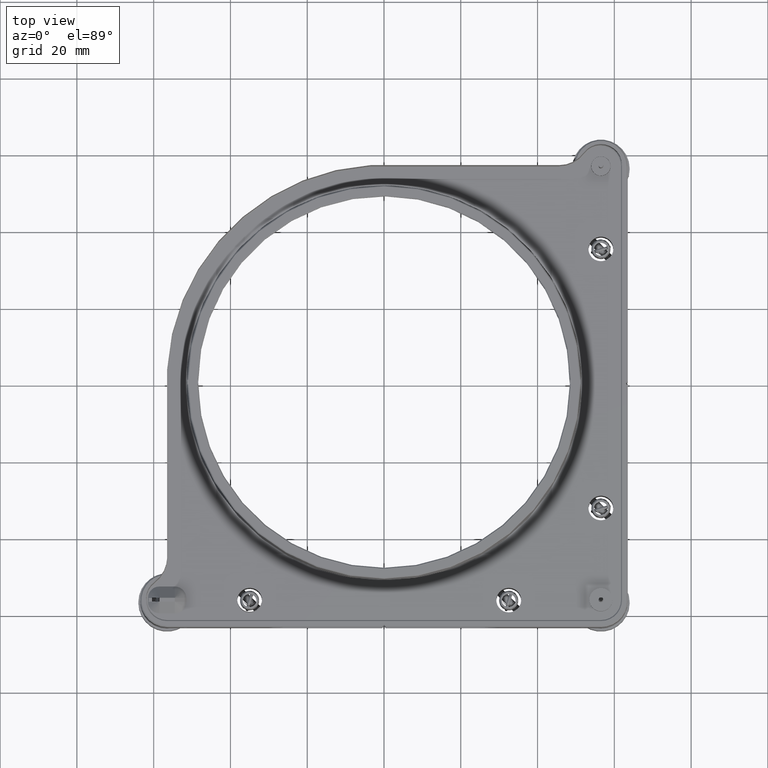
[diagram: clean part render]
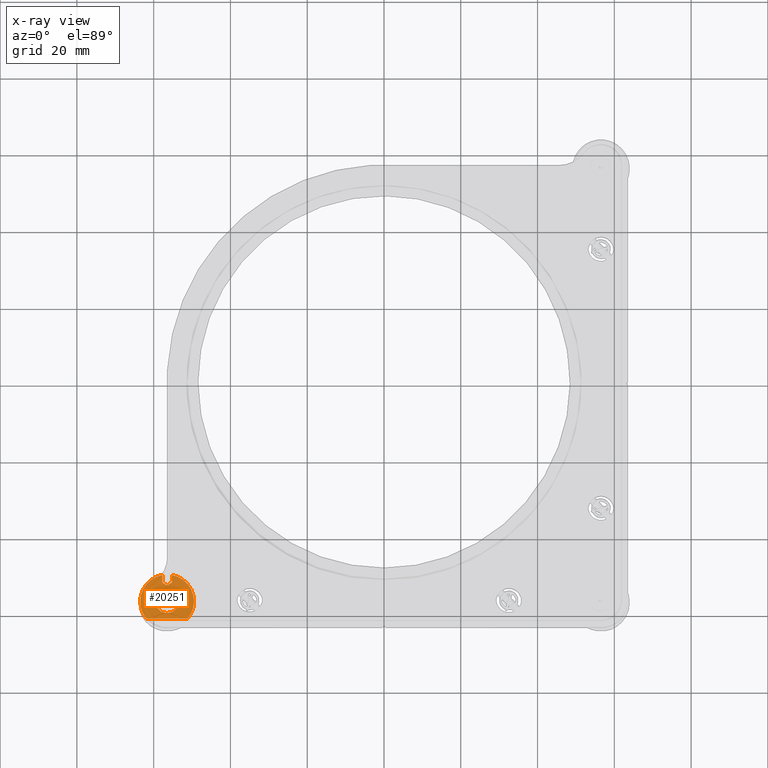
[diagram: x-ray — body ghosted, one internal face saturated and labeled with its STEP entity id]
A machine part, top view, then the same camera in x-ray: the body is ghosted and one INTERNAL B-rep face — a face not visible from any outside direction — is saturated and labeled: STEP entity #20251.
In plain terms, the highlighted planar face has unit normal (0, -0, -1).
Its self-contained STEP definition (entity closure, byte-faithful):
#3 = CARTESIAN_POINT ( 'NONE',  ( -56.16186078174233387, -52.09840403691675448, -11.75000000000037481 ) ) ;
#43 = VERTEX_POINT ( 'NONE', #5262 ) ;
#78 = CARTESIAN_POINT ( 'NONE',  ( -56.49999999999992184, -53.49999999999980105, -11.50000000000045652 ) ) ;
#114 = CARTESIAN_POINT ( 'NONE',  ( -55.80894967487798652, -51.90952867547864003, -11.75000000000037659 ) ) ;
#271 = CARTESIAN_POINT ( 'NONE',  ( -50.51871265478024497, -52.86193592251775186, -11.25000000000052225 ) ) ;
#381 = CARTESIAN_POINT ( 'NONE',  ( -50.99856001058206090, -52.16649219535297988, -11.25000000000052935 ) ) ;
#477 = CARTESIAN_POINT ( 'NONE',  ( -58.50842081413923523, -49.74723849351862981, -11.25000000000055422 ) ) ;
#792 = DIRECTION ( 'NONE',  ( 1.963787471554208203E-15, -6.569889802812270970E-15, -1.000000000000000000 ) ) ;
#802 = CARTESIAN_POINT ( 'NONE',  ( -61.12845390056069306, -51.24750316246133508, -11.25000000000055245 ) ) ;
#915 = CARTESIAN_POINT ( 'NONE',  ( -63.16029154338028917, -54.34469888105432034, -11.25000000000053824 ) ) ;
#929 = CARTESIAN_POINT ( 'NONE',  ( -55.44014819953409301, -53.69334827706997970, -11.75000000000038902 ) ) ;
#1007 = CARTESIAN_POINT ( 'NONE',  ( -57.51526661639231008, -59.32311495970036219, -11.75000000000041567 ) ) ;
#1013 = CARTESIAN_POINT ( 'NONE',  ( -59.29888203132725977, -55.41976774133113537, -11.75000000000039080 ) ) ;
#1094 = VERTEX_POINT ( 'NONE', #5061 ) ;
#1214 = CARTESIAN_POINT ( 'NONE',  ( -53.49999999999991473, -56.69065434817396465, -11.75000000000040856 ) ) ;
#1288 = CARTESIAN_POINT ( 'NONE',  ( -61.86190264738173994, -60.99999999999952394, -11.75000000000042100 ) ) ;
#1372 = CARTESIAN_POINT ( 'NONE',  ( -58.23817256719159019, -54.03906391374328422, -11.75000000000038547 ) ) ;
#1451 = CARTESIAN_POINT ( 'NONE',  ( -53.52632938710149091, -56.97168062539027744, -11.75000000000040856 ) ) ;
#1486 = CARTESIAN_POINT ( 'NONE',  ( -56.16929105988992887, -52.10197467492879042, -11.75000000000037836 ) ) ;
#1488 = CARTESIAN_POINT ( 'NONE',  ( -57.93138267622927629, -53.85953354456488995, -11.75000000000038369 ) ) ;
#1566 = CARTESIAN_POINT ( 'NONE',  ( -53.67690056958872447, -57.51530586231214670, -11.75000000000041211 ) ) ;
#1601 = CARTESIAN_POINT ( 'NONE',  ( -55.84200856994303308, -51.92814195544448808, -11.75000000000037659 ) ) ;
#1899 = EDGE_CURVE ( 'NONE', #1956, #43, #16013, .T. ) ;
#1936 = ORIENTED_EDGE ( 'NONE', *, *, #13702, .F. ) ;
#1941 = CARTESIAN_POINT ( 'NONE',  ( -56.29729708330521731, -52.15780052147799495, -11.75000000000037303 ) ) ;
#1956 = VERTEX_POINT ( 'NONE', #18577 ) ;
#2054 = CARTESIAN_POINT ( 'NONE',  ( -57.10704332855591048, -51.95660970702233072, -11.75000000000036948 ) ) ;
#2060 = EDGE_LOOP ( 'NONE', ( #8557, #2856, #3161, #4019 ) ) ;
#2127 = EDGE_CURVE ( 'NONE', #14366, #5781, #11643, .T. ) ;
#2190 = CARTESIAN_POINT ( 'NONE',  ( -49.49999999999989342, -56.49999999999968026, -11.25000000000043876 ) ) ;
#2198 = CARTESIAN_POINT ( 'NONE',  ( -62.68895012851452719, -53.22771773545589014, -11.25000000000054179 ) ) ;
#2205 = CARTESIAN_POINT ( 'NONE',  ( -50.63132769190118410, -52.68287588785119624, -11.25000000000052580 ) ) ;
#2388 = B_SPLINE_CURVE_WITH_KNOTS ( 'NONE', 3,
 ( #6049, #8080, #8199, #18454, #6265, #16858, #929, #9559, #4467, #7850, #11500, #20404, #16629, #4820, #18222, #15032, #20167, #16519, #11385, #3108 ),
 .UNSPECIFIED., .F., .F.,
 ( 4, 1, 1, 1, 2, 2, 2, 1, 1, 1, 2, 2, 4 ),
 ( 0.4999999999999998890, 0.5625000000000014433, 0.5937500000000031086, 0.6093750000000039968, 0.6171875000000033307, 0.6250000000000026645, 0.7499999999999952260, 0.8124999999999922284, 0.8437499999999906741, 0.8593749999999904521, 0.8671874999999902300, 0.8749999999999901190, 1.000000000000000000 ),
 .UNSPECIFIED. ) ;
#2412 = CARTESIAN_POINT ( 'NONE',  ( -59.24671543388236472, -50.01236839837584114, -11.25000000000056311 ) ) ;
#2418 = CARTESIAN_POINT ( 'NONE',  ( -50.30906779553731667, -53.22646420396986855, -11.25000000000052225 ) ) ;
#2525 = CARTESIAN_POINT ( 'NONE',  ( -61.51481666413052096, -51.60807952107313668, -11.25000000000055067 ) ) ;
#2538 = VERTEX_POINT ( 'NONE', #21933 ) ;
#2856 = ORIENTED_EDGE ( 'NONE', *, *, #19281, .F. ) ;
#3073 = CARTESIAN_POINT ( 'NONE',  ( -59.14046645542755698, -57.93138267623469062, -11.75000000000040856 ) ) ;
#3108 = CARTESIAN_POINT ( 'NONE',  ( -53.49999999999991473, -56.49999999999980105, -11.75000000000040856 ) ) ;
#3148 = ORIENTED_EDGE ( 'NONE', *, *, #4364, .F. ) ;
#3157 = B_SPLINE_CURVE_WITH_KNOTS ( 'NONE', 3,
 ( #20132, #18649, #3304, #22209, #13188, #1007, #6343, #6574, #11824, #16707, #11582, #9744, #3073, #16940, #7927, #18533, #13417, #8041, #14995, #21849 ),
 .UNSPECIFIED., .F., .F.,
 ( 4, 1, 1, 1, 2, 2, 2, 1, 1, 1, 2, 2, 4 ),
 ( 0.5000000000000001110, 0.5624999999999890088, 0.5937499999999847899, 0.6093749999999826805, 0.6171874999999816813, 0.6249999999999806821, 0.7499999999999755751, 0.8124999999999737987, 0.8437499999999734657, 0.8593749999999737987, 0.8671874999999749090, 0.8749999999999760192, 1.000000000000000000 ),
 .UNSPECIFIED. ) ;
#3161 = ORIENTED_EDGE ( 'NONE', *, *, #20387, .F. ) ;
#3275 = CARTESIAN_POINT ( 'NONE',  ( -53.60312343281445635, -57.29087293664740344, -11.75000000000041211 ) ) ;
#3304 = CARTESIAN_POINT ( 'NONE',  ( -56.97153162393164649, -59.47372957155613449, -11.75000000000042100 ) ) ;
#3310 = CARTESIAN_POINT ( 'NONE',  ( -56.57274855381451317, -52.19583506706712939, -11.75000000000038369 ) ) ;
#3312 = CARTESIAN_POINT ( 'NONE',  ( -59.13709085294672008, -55.01088595104289425, -11.75000000000039080 ) ) ;
#3357 = CARTESIAN_POINT ( 'NONE',  ( -52.61421730471138147, -50.67098742930284061, -11.25000000000054179 ) ) ;
#3420 = CARTESIAN_POINT ( 'NONE',  ( -56.20960413102373110, -52.12111964587311519, -11.75000000000038192 ) ) ;
#3869 = CARTESIAN_POINT ( 'NONE',  ( -56.66825393247313514, -52.17001119424177347, -11.75000000000037303 ) ) ;
#3903 = CARTESIAN_POINT ( 'NONE',  ( -60.09759000668439199, -50.49482234149553506, -11.25000000000055245 ) ) ;
#3910 = CARTESIAN_POINT ( 'NONE',  ( -49.63186560256951907, -54.93075197248577979, -11.25000000000050981 ) ) ;
#4019 = ORIENTED_EDGE ( 'NONE', *, *, #4299, .F. ) ;
#4022 = CARTESIAN_POINT ( 'NONE',  ( -50.02409909007859312, -53.83878147589873464, -11.25000000000051514 ) ) ;
#4045 = B_SPLINE_CURVE_WITH_KNOTS ( 'NONE', 3,
 ( #18770, #11933, #13533, #6799 ),
 .UNSPECIFIED., .F., .F.,
 ( 4, 4 ),
 ( 0.000000000000000000, 1.000000000000000000 ),
 .UNSPECIFIED. ) ;
#4050 = B_SPLINE_CURVE_WITH_KNOTS ( 'NONE', 3,
 ( #17067, #21976, #6351, #9873, #7936, #4789, #18426, #1013, #3312, #10109, #11711, #1372, #1488, #13307, #6582, #15364, #22338, #13543, #11944, #9752 ),
 .UNSPECIFIED., .F., .F.,
 ( 4, 1, 1, 1, 2, 2, 2, 1, 1, 1, 2, 2, 4 ),
 ( 0.000000000000000000, 0.06249999999999640565, 0.09374999999999461542, 0.1093749999999940187, 0.1171874999999948236, 0.1249999999999956146, 0.2499999999999916178, 0.3124999999999903411, 0.3437499999999902855, 0.3593749999999888423, 0.3671874999999895084, 0.3749999999999901745, 0.4999999999999998890 ),
 .UNSPECIFIED. ) ;
#4120 = CARTESIAN_POINT ( 'NONE',  ( -63.03532545980032609, -53.98341618098292116, -11.25000000000054001 ) ) ;
#4127 = CARTESIAN_POINT ( 'NONE',  ( -49.49999999999989342, -56.49999999999968026, -11.25000000000043876 ) ) ;
#4299 = EDGE_CURVE ( 'NONE', #7898, #2538, #3157, .T. ) ;
#4364 = EDGE_CURVE ( 'NONE', #5345, #5781, #11254, .T. ) ;
#4467 = CARTESIAN_POINT ( 'NONE',  ( -55.01088595103418299, -53.86290914705651289, -11.75000000000038547 ) ) ;
#4663 = CARTESIAN_POINT ( 'NONE',  ( -57.72474487139208321, -49.60797562395462990, -11.50000000000029488 ) ) ;
#4789 = CARTESIAN_POINT ( 'NONE',  ( -59.32309943041114053, -55.48469413768628300, -11.75000000000039613 ) ) ;
#4820 = CARTESIAN_POINT ( 'NONE',  ( -53.78125533051308338, -55.22962801546916012, -11.75000000000039968 ) ) ;
#4909 = B_SPLINE_CURVE_WITH_KNOTS ( 'NONE', 3,
 ( #17176, #15702, #4912, #5240, #114, #1601, #7034, #13991, #20950, #15589, #5350, #12275, #19228, #10558, #3, #1486, #20612, #6700, #3420, #5125, #1941, #8855, #11830, #6916, #5022, #12052, #13876, #3310, #10220, #8509, #18996, #3869, #9073, #5889, #10889, #14105, #12727, #5680, #10785, #5465, #12615, #5788, #10675, #9288, #2054, #17955, #14321, #17631, #12390, #9179, #8964 ),
 .UNSPECIFIED., .F., .F.,
 ( 4, 1, 1, 1, 1, 1, 2, 2, 1, 1, 1, 1, 2, 2, 1, 1, 2, 2, 2, 1, 1, 1, 2, 2, 1, 1, 1, 2, 2, 1, 1, 1, 1, 2, 2, 4 ),
 ( 0.000000000000000000, 0.1250000000000580092, 0.1875000000000837386, 0.2187500000001004474, 0.2343750000001106892, 0.2421875000001202649, 0.2460937500001230405, 0.2500000000001257883, 0.3125000000001382783, 0.3437500000001478817, 0.3593750000001507128, 0.3671875000001584288, 0.3710937500001643685, 0.3750000000001703637, 0.4062500000002415290, 0.4218750000002771117, 0.4296875000002896017, 0.4375000000003021472, 0.5000000000004340972, 0.5312500000005001555, 0.5468750000005293543, 0.5546875000005405676, 0.5585937500005461187, 0.5625000000005516698, 0.5937500000005461187, 0.6093750000005417888, 0.6171875000005411227, 0.6210937500005376810, 0.6250000000005343503, 0.6875000000004581890, 0.7187500000004234391, 0.7343750000004047873, 0.7421875000003953504, 0.7460937500003907985, 0.7500000000003861356, 1.000000000000000000 ),
 .UNSPECIFIED. ) ;
#4912 = CARTESIAN_POINT ( 'NONE',  ( -55.57648270543909774, -51.77653576716659245, -11.75000000000037481 ) ) ;
#4991 = CARTESIAN_POINT ( 'NONE',  ( -54.08608737129758026, -58.32862300329139771, -11.75000000000041567 ) ) ;
#5022 = CARTESIAN_POINT ( 'NONE',  ( -56.39962161109171035, -52.19220148613622712, -11.75000000000037481 ) ) ;
#5061 = CARTESIAN_POINT ( 'NONE',  ( -55.27525512860826495, -49.60797562395457305, -11.50000000000047962 ) ) ;
#5066 = CARTESIAN_POINT ( 'NONE',  ( -53.10374361390877596, -50.37904722462938878, -11.25000000000054534 ) ) ;
#5125 = CARTESIAN_POINT ( 'NONE',  ( -56.25248661321005983, -52.14020395498076965, -11.75000000000037481 ) ) ;
#5176 = CARTESIAN_POINT ( 'NONE',  ( -51.70690492405395844, -51.38078893014997561, -11.25000000000053646 ) ) ;
#5240 = CARTESIAN_POINT ( 'NONE',  ( -55.73795851345519736, -51.86925736861593350, -11.75000000000037303 ) ) ;
#5262 = CARTESIAN_POINT ( 'NONE',  ( -51.13809735261796163, -60.99999999999955236, -11.50000000000045119 ) ) ;
#5345 = VERTEX_POINT ( 'NONE', #16621 ) ;
#5350 = CARTESIAN_POINT ( 'NONE',  ( -55.93684561888940010, -51.98112666571250884, -11.75000000000037659 ) ) ;
#5465 = CARTESIAN_POINT ( 'NONE',  ( -56.83047129396858566, -52.10209177661205615, -11.75000000000037481 ) ) ;
#5615 = CARTESIAN_POINT ( 'NONE',  ( -49.91303310824537220, -54.13092516780945118, -11.25000000000051159 ) ) ;
#5680 = CARTESIAN_POINT ( 'NONE',  ( -56.81785146428256184, -52.10809418135103499, -11.75000000000037126 ) ) ;
#5715 = CARTESIAN_POINT ( 'NONE',  ( -62.78350582512262434, -53.41310783827613307, -11.25000000000054712 ) ) ;
#5747 = ORIENTED_EDGE ( 'NONE', *, *, #14360, .T. ) ;
#5781 = VERTEX_POINT ( 'NONE', #4663 ) ;
#5788 = CARTESIAN_POINT ( 'NONE',  ( -56.93689616253961105, -52.04914009825044729, -11.75000000000037836 ) ) ;
#5819 = CARTESIAN_POINT ( 'NONE',  ( -62.91896987900540239, -53.69402059935563898, -11.25000000000053646 ) ) ;
#5889 = CARTESIAN_POINT ( 'NONE',  ( -56.69795680971701302, -52.15979102447308691, -11.75000000000037481 ) ) ;
#6034 = CARTESIAN_POINT ( 'NONE',  ( -63.11303790885262543, -54.20470427747719810, -11.25000000000053824 ) ) ;
#6049 = CARTESIAN_POINT ( 'NONE',  ( -56.49999999999992184, -53.49999999999980105, -11.75000000000038369 ) ) ;
#6087 = AXIS2_PLACEMENT_3D ( 'NONE', #14827, #21912, #22157 ) ;
#6265 = CARTESIAN_POINT ( 'NONE',  ( -55.55176401556717991, -53.65301376811494549, -11.75000000000038547 ) ) ;
#6343 = CARTESIAN_POINT ( 'NONE',  ( -57.55985180046515381, -59.30665172292965082, -11.75000000000042100 ) ) ;
#6351 = CARTESIAN_POINT ( 'NONE',  ( -59.47367061289834567, -56.02831937460480560, -11.75000000000039790 ) ) ;
#6574 = CARTESIAN_POINT ( 'NONE',  ( -57.58023225866855910, -59.29888203132701818, -11.75000000000042277 ) ) ;
#6582 = CARTESIAN_POINT ( 'NONE',  ( -57.69973545675514970, -53.75016901817313197, -11.75000000000038369 ) ) ;
#6700 = CARTESIAN_POINT ( 'NONE',  ( -56.17520551547445251, -52.10480564513019175, -11.75000000000037659 ) ) ;
#6775 = CARTESIAN_POINT ( 'NONE',  ( -53.70111796867284681, -57.58023225866872963, -11.75000000000041744 ) ) ;
#6799 = CARTESIAN_POINT ( 'NONE',  ( -55.27525512860827206, -51.59999999999973852, -11.75000000000037303 ) ) ;
#6887 = CARTESIAN_POINT ( 'NONE',  ( -55.34771821634191724, -59.27000819145320776, -11.75000000000042277 ) ) ;
#6916 = CARTESIAN_POINT ( 'NONE',  ( -56.33100397684732741, -52.16979519260885922, -11.75000000000037659 ) ) ;
#7008 = B_SPLINE_CURVE_WITH_KNOTS ( 'NONE', 3,
 ( #17563, #15522, #17227, #8902, #22384, #11876, #20658, #5066, #11990, #18929, #3357, #22494, #13817, #20776, #5176, #19048, #381, #9005, #2205, #271, #19604, #2418, #21112, #4022, #10823, #19816, #5615, #17992, #3910, #11037, #4127 ),
 .UNSPECIFIED., .F., .F.,
 ( 4, 1, 1, 1, 1, 2, 2, 1, 2, 2, 2, 1, 2, 2, 1, 1, 1, 2, 2, 4 ),
 ( 0.000000000000000000, 0.1249999999999650835, 0.1874999999999490408, 0.2187499999999420186, 0.2343749999999399924, 0.2421874999999389932, 0.2499999999999379940, 0.3124999999999403810, 0.3437499999999422129, 0.3749999999999440448, 0.4999999999999510392, 0.5624999999999543698, 0.5937499999999551470, 0.6249999999999559241, 0.6874999999999604761, 0.7187499999999623634, 0.7343749999999631406, 0.7421874999999632516, 0.7499999999999632516, 1.000000000000000000 ),
 .UNSPECIFIED. ) ;
#7034 = CARTESIAN_POINT ( 'NONE',  ( -55.85792884606398445, -51.93706800206102514, -11.75000000000037481 ) ) ;
#7727 = CARTESIAN_POINT ( 'NONE',  ( -60.55745987997215707, -50.78915740737450335, -11.25000000000055422 ) ) ;
#7850 = CARTESIAN_POINT ( 'NONE',  ( -54.67137699671191342, -54.08608737128855637, -11.75000000000038902 ) ) ;
#7898 = VERTEX_POINT ( 'NONE', #13263 ) ;
#7927 = CARTESIAN_POINT ( 'NONE',  ( -59.24983098182404717, -57.69973545675697579, -11.75000000000040679 ) ) ;
#7936 = CARTESIAN_POINT ( 'NONE',  ( -59.34696043747195660, -55.55169882742884369, -11.75000000000039613 ) ) ;
#7937 = CIRCLE ( 'NONE', #6087, 7.000000000000020428 ) ;
#8041 = CARTESIAN_POINT ( 'NONE',  ( -59.42978830106236643, -57.24976015016821407, -11.75000000000039968 ) ) ;
#8080 = CARTESIAN_POINT ( 'NONE',  ( -56.30943079551393282, -53.49996630933812725, -11.75000000000038369 ) ) ;
#8199 = CARTESIAN_POINT ( 'NONE',  ( -56.02846837606376340, -53.52627042844347471, -11.75000000000038547 ) ) ;
#8389 = CARTESIAN_POINT ( 'NONE',  ( -57.72474487139154320, -49.60797562395460858, -11.75000000000035705 ) ) ;
#8500 = CARTESIAN_POINT ( 'NONE',  ( -57.72474487139154320, -50.27198374930295444, -11.75000000000036060 ) ) ;
#8509 = CARTESIAN_POINT ( 'NONE',  ( -56.64919285641193625, -52.17617401267166599, -11.75000000000037126 ) ) ;
#8557 = ORIENTED_EDGE ( 'NONE', *, *, #15234, .F. ) ;
#8732 = CARTESIAN_POINT ( 'NONE',  ( -57.72474487139154320, -51.59999999999964615, -11.75000000000036948 ) ) ;
#8855 = CARTESIAN_POINT ( 'NONE',  ( -56.31538319353411737, -52.16434152266361934, -11.75000000000037836 ) ) ;
#8902 = CARTESIAN_POINT ( 'NONE',  ( -53.67682099014744068, -50.08873672678421229, -11.25000000000055067 ) ) ;
#8950 = VERTEX_POINT ( 'NONE', #2190 ) ;
#8964 = CARTESIAN_POINT ( 'NONE',  ( -57.72474487139154320, -51.59999999999964615, -11.75000000000036948 ) ) ;
#9005 = CARTESIAN_POINT ( 'NONE',  ( -50.80612768904622101, -52.41844511815163088, -11.25000000000052403 ) ) ;
#9073 = CARTESIAN_POINT ( 'NONE',  ( -56.67322838796319218, -52.16832624092921122, -11.75000000000037303 ) ) ;
#9107 = CARTESIAN_POINT ( 'NONE',  ( -61.04698956541741950, -51.17687648630474939, -11.25000000000055245 ) ) ;
#9179 = CARTESIAN_POINT ( 'NONE',  ( -57.46975168841969150, -51.75011978283477276, -11.75000000000037126 ) ) ;
#9286 = AXIS2_PLACEMENT_3D ( 'NONE', #11462, #14994, #9409 ) ;
#9288 = CARTESIAN_POINT ( 'NONE',  ( -57.08072645331179018, -51.97119692532480428, -11.75000000000037126 ) ) ;
#9321 = CARTESIAN_POINT ( 'NONE',  ( -60.03014256613805344, -50.45526998206279501, -11.25000000000055600 ) ) ;
#9330 = CARTESIAN_POINT ( 'NONE',  ( -63.49999999999991473, -56.49999999999970157, -11.25000000000037481 ) ) ;
#9409 = DIRECTION ( 'NONE',  ( 9.912705577010296953E-16, 1.000000000000000000, 6.443258625056693020E-15 ) ) ;
#9417 = PLANE ( 'NONE',  #21391 ) ;
#9559 = CARTESIAN_POINT ( 'NONE',  ( -55.41976774133180328, -53.70111796867225706, -11.75000000000038902 ) ) ;
#9642 = FACE_OUTER_BOUND ( 'NONE', #11173, .T. ) ;
#9744 = CARTESIAN_POINT ( 'NONE',  ( -58.96093608624673266, -58.23817256719884483, -11.75000000000040856 ) ) ;
#9752 = CARTESIAN_POINT ( 'NONE',  ( -56.49999999999992184, -53.49999999999980105, -11.75000000000038369 ) ) ;
#9873 = CARTESIAN_POINT ( 'NONE',  ( -59.39687656718538733, -55.70912706334883069, -11.75000000000039257 ) ) ;
#10073 = CARTESIAN_POINT ( 'NONE',  ( -53.65303956252791551, -57.44830117256877600, -11.75000000000041567 ) ) ;
#10109 = CARTESIAN_POINT ( 'NONE',  ( -58.91391262871243839, -54.67137699671835094, -11.75000000000038547 ) ) ;
#10186 = CARTESIAN_POINT ( 'NONE',  ( -55.06861732376390961, -59.14046645542806147, -11.75000000000042277 ) ) ;
#10220 = CARTESIAN_POINT ( 'NONE',  ( -56.62306057232819256, -52.18384891963417260, -11.75000000000037481 ) ) ;
#10558 = CARTESIAN_POINT ( 'NONE',  ( -56.14401192541091490, -52.08972090702584978, -11.75000000000037481 ) ) ;
#10675 = CARTESIAN_POINT ( 'NONE',  ( -57.03010284006531805, -51.99900277094559442, -11.75000000000037481 ) ) ;
#10785 = CARTESIAN_POINT ( 'NONE',  ( -56.82529838702842540, -52.10456435241581374, -11.75000000000037659 ) ) ;
#10823 = CARTESIAN_POINT ( 'NONE',  ( -49.95800561214705482, -54.00859035971173228, -11.25000000000051692 ) ) ;
#10889 = CARTESIAN_POINT ( 'NONE',  ( -56.73405078738073826, -52.14579775319738530, -11.75000000000037481 ) ) ;
#10924 = CARTESIAN_POINT ( 'NONE',  ( -63.30632239622589452, -54.84210617991376324, -11.25000000000053468 ) ) ;
#11032 = CARTESIAN_POINT ( 'NONE',  ( -62.13751646343372670, -52.32895559870058833, -11.25000000000055067 ) ) ;
#11037 = CARTESIAN_POINT ( 'NONE',  ( -49.49999999999992895, -55.70404640208572999, -11.25000000000050093 ) ) ;
#11142 = CARTESIAN_POINT ( 'NONE',  ( -62.64031524424714092, -53.13731549924552411, -11.25000000000054534 ) ) ;
#11153 = ORIENTED_EDGE ( 'NONE', *, *, #14679, .F. ) ;
#11173 = EDGE_LOOP ( 'NONE', ( #11153, #20447, #3148, #1936, #21549, #5747, #21534, #15165 ) ) ;
#11255 = CARTESIAN_POINT ( 'NONE',  ( -60.25321562359685856, -50.58960668729338295, -11.25000000000056133 ) ) ;
#11254 = B_SPLINE_CURVE_WITH_KNOTS ( 'NONE', 3,
 ( #8732, #15465, #8500, #8389 ),
 .UNSPECIFIED., .F., .F.,
 ( 4, 4 ),
 ( 0.000000000000000000, 1.000000000000000000 ),
 .UNSPECIFIED. ) ;
#11385 = CARTESIAN_POINT ( 'NONE',  ( -53.49999999999991473, -56.11833455939717652, -11.75000000000040679 ) ) ;
#11462 = CARTESIAN_POINT ( 'NONE',  ( -56.49999999999988631, -56.49999999999965894, -11.25000000000047251 ) ) ;
#11500 = CARTESIAN_POINT ( 'NONE',  ( -54.23233098630445426, -54.52497579901595515, -11.75000000000039257 ) ) ;
#11582 = CARTESIAN_POINT ( 'NONE',  ( -58.76766901369312279, -58.47502420098724230, -11.75000000000040679 ) ) ;
#11643 = B_SPLINE_CURVE_WITH_KNOTS ( 'NONE', 3,
 ( #16067, #21429, #12872, #10924, #14563, #915, #21760, #19701, #6034, #4120, #5819, #5715, #2198, #11142, #19924, #11032, #19487, #2525, #16391, #802, #9107, #18207, #7727, #11255, #3903, #9321, #12541, #14675, #2412, #477, #16505 ),
 .UNSPECIFIED., .F., .F.,
 ( 4, 1, 1, 1, 1, 2, 2, 1, 2, 2, 2, 1, 2, 2, 1, 1, 1, 2, 2, 4 ),
 ( 0.000000000000000000, 0.1249999999999664435, 0.1874999999999485689, 0.2187499999999401312, 0.2343749999999365508, 0.2421874999999358291, 0.2499999999999350520, 0.3124999999999312772, 0.3437499999999303335, 0.3749999999999293343, 0.4999999999999313882, 0.5624999999999317213, 0.5937499999999332756, 0.6249999999999349409, 0.6874999999999411582, 0.7187499999999433786, 0.7343749999999430456, 0.7421874999999442668, 0.7499999999999454880, 1.000000000000000000 ),
 .UNSPECIFIED. ) ;
#11711 = CARTESIAN_POINT ( 'NONE',  ( -58.47502420098315667, -54.23233098630106497, -11.75000000000038192 ) ) ;
#11794 = CARTESIAN_POINT ( 'NONE',  ( -55.75006942233354579, -59.42972079643537597, -11.75000000000042633 ) ) ;
#11824 = CARTESIAN_POINT ( 'NONE',  ( -57.98911404895761734, -59.13709085294848933, -11.75000000000041744 ) ) ;
#11830 = CARTESIAN_POINT ( 'NONE',  ( -56.32719207214120871, -52.16847988246377099, -11.75000000000037481 ) ) ;
#11856 = CIRCLE ( 'NONE', #9286, 7.000000000000020428 ) ;
#11876 = CARTESIAN_POINT ( 'NONE',  ( -53.21263632010160904, -50.31954318902851497, -11.25000000000054712 ) ) ;
#11933 = CARTESIAN_POINT ( 'NONE',  ( -55.27525512860827206, -50.27198374930300417, -11.75000000000036415 ) ) ;
#11944 = CARTESIAN_POINT ( 'NONE',  ( -56.88113840897189277, -53.50006738132313444, -11.75000000000038014 ) ) ;
#11990 = CARTESIAN_POINT ( 'NONE',  ( -53.08306880956675400, -50.39056188527876401, -11.25000000000054357 ) ) ;
#12052 = CARTESIAN_POINT ( 'NONE',  ( -56.45787944649311640, -52.20166935223972615, -11.75000000000037303 ) ) ;
#12275 = CARTESIAN_POINT ( 'NONE',  ( -56.02259564911832967, -52.02777617418596634, -11.75000000000037836 ) ) ;
#12390 = CARTESIAN_POINT ( 'NONE',  ( -57.27284681447161319, -51.86397521340992967, -11.75000000000037303 ) ) ;
#12541 = CARTESIAN_POINT ( 'NONE',  ( -59.98501077297738959, -50.42913940978586851, -11.25000000000055600 ) ) ;
#12615 = CARTESIAN_POINT ( 'NONE',  ( -56.87078852288988884, -52.08273032633456268, -11.75000000000037481 ) ) ;
#12727 = CARTESIAN_POINT ( 'NONE',  ( -56.80677866605941517, -52.11330726904555632, -11.75000000000037659 ) ) ;
#12872 = CARTESIAN_POINT ( 'NONE',  ( -63.45055039903635219, -55.51385775341827156, -11.25000000000053291 ) ) ;
#13188 = CARTESIAN_POINT ( 'NONE',  ( -57.44823598443070267, -59.34698623188467081, -11.75000000000042100 ) ) ;
#13263 = CARTESIAN_POINT ( 'NONE',  ( -56.49999999999992184, -59.49999999999980815, -11.50000000000045652 ) ) ;
#13307 = CARTESIAN_POINT ( 'NONE',  ( -57.77037198453005828, -53.78125533051044016, -11.75000000000038369 ) ) ;
#13417 = CARTESIAN_POINT ( 'NONE',  ( -59.28058844082003276, -57.62644187734275647, -11.75000000000040501 ) ) ;
#13533 = CARTESIAN_POINT ( 'NONE',  ( -55.27525512860827206, -50.93599187465137135, -11.75000000000036948 ) ) ;
#13543 = CARTESIAN_POINT ( 'NONE',  ( -57.24993057765203019, -53.57027920356424744, -11.75000000000038547 ) ) ;
#13702 = EDGE_CURVE ( 'NONE', #21769, #5345, #4909, .T. ) ;
#13736 = CARTESIAN_POINT ( 'NONE',  ( -56.49999999999992184, -59.49999999999980815, -11.75000000000042100 ) ) ;
#13817 = CARTESIAN_POINT ( 'NONE',  ( -52.19535227688284351, -50.97904511049620169, -11.25000000000053646 ) ) ;
#13876 = CARTESIAN_POINT ( 'NONE',  ( -56.53297119449494801, -52.20034262230903721, -11.75000000000037303 ) ) ;
#13991 = CARTESIAN_POINT ( 'NONE',  ( -55.86462128481332456, -51.94081189488959893, -11.75000000000037659 ) ) ;
#14105 = CARTESIAN_POINT ( 'NONE',  ( -56.78162523814108198, -52.12489955037418099, -11.75000000000037659 ) ) ;
#14321 = CARTESIAN_POINT ( 'NONE',  ( -57.12624791007684877, -51.94591328863091917, -11.75000000000037481 ) ) ;
#14360 = EDGE_CURVE ( 'NONE', #1094, #8950, #7008, .T. ) ;
#14366 = VERTEX_POINT ( 'NONE', #9330 ) ;
#14563 = CARTESIAN_POINT ( 'NONE',  ( -63.21257419439907466, -54.50989118245806253, -11.25000000000053646 ) ) ;
#14617 = CARTESIAN_POINT ( 'NONE',  ( -58.28730088246047103, -60.99999999999952394, -11.75000000000042810 ) ) ;
#14667 = CARTESIAN_POINT ( 'NONE',  ( -55.27525512860832180, -51.59999999999973141, -11.50000000000045652 ) ) ;
#14675 = CARTESIAN_POINT ( 'NONE',  ( -59.96128227114522247, -50.41558399290595105, -11.25000000000055955 ) ) ;
#14679 = EDGE_CURVE ( 'NONE', #14366, #1956, #11856, .T. ) ;
#14802 = EDGE_CURVE ( 'NONE', #1094, #21769, #4045, .T. ) ;
#14827 = CARTESIAN_POINT ( 'NONE',  ( -56.49999999999988631, -56.49999999999965894, -11.25000000000038725 ) ) ;
#14994 = DIRECTION ( 'NONE',  ( -1.963787471554208992E-15, -6.419044283162231269E-15, 1.000000000000000000 ) ) ;
#14995 = CARTESIAN_POINT ( 'NONE',  ( -59.49999999999993605, -56.88166544060634067, -11.75000000000039968 ) ) ;
#15032 = CARTESIAN_POINT ( 'NONE',  ( -53.72999180854607459, -55.34771821634287647, -11.75000000000040146 ) ) ;
#15165 = ORIENTED_EDGE ( 'NONE', *, *, #1899, .F. ) ;
#15234 = EDGE_CURVE ( 'NONE', #18642, #7898, #21987, .T. ) ;
#15364 = CARTESIAN_POINT ( 'NONE',  ( -57.65228178365669720, -53.72999180854516510, -11.75000000000038192 ) ) ;
#15465 = CARTESIAN_POINT ( 'NONE',  ( -57.72474487139154320, -50.93599187465130029, -11.75000000000036593 ) ) ;
#15522 = CARTESIAN_POINT ( 'NONE',  ( -54.88358738330317976, -49.67757680877041793, -11.25000000000055245 ) ) ;
#15553 = VERTEX_POINT ( 'NONE', #78 ) ;
#15556 = CARTESIAN_POINT ( 'NONE',  ( -53.69335643652722467, -57.55987242120261982, -11.75000000000041567 ) ) ;
#15589 = CARTESIAN_POINT ( 'NONE',  ( -55.86948034472435864, -51.94352867314504607, -11.75000000000037659 ) ) ;
#15702 = CARTESIAN_POINT ( 'NONE',  ( -55.40465746684719761, -51.67618184411173132, -11.75000000000037659 ) ) ;
#16013 = B_SPLINE_CURVE_WITH_KNOTS ( 'NONE', 3,
 ( #1288, #14617, #20299, #20534 ),
 .UNSPECIFIED., .F., .F.,
 ( 4, 4 ),
 ( 0.000000000000000000, 1.000000000000000000 ),
 .UNSPECIFIED. ) ;
#16067 = CARTESIAN_POINT ( 'NONE',  ( -63.49999999999991473, -56.49999999999970157, -11.25000000000037481 ) ) ;
#16378 = CARTESIAN_POINT ( 'NONE',  ( -49.49999999999987921, -49.49999999999973710, -11.25000000000054179 ) ) ;
#16391 = CARTESIAN_POINT ( 'NONE',  ( -61.28504839120336101, -51.38971008246589633, -11.25000000000055600 ) ) ;
#16505 = CARTESIAN_POINT ( 'NONE',  ( -57.72474487139271559, -49.60797562395466542, -11.25000000000055778 ) ) ;
#16519 = CARTESIAN_POINT ( 'NONE',  ( -53.57021169893747015, -55.75023984983530312, -11.75000000000040323 ) ) ;
#16621 = CARTESIAN_POINT ( 'NONE',  ( -57.72474487139180610, -51.59999999999959641, -11.50000000000045830 ) ) ;
#16629 = CARTESIAN_POINT ( 'NONE',  ( -53.85953354456929532, -55.06861732376964369, -11.75000000000039968 ) ) ;
#16707 = CARTESIAN_POINT ( 'NONE',  ( -58.32862300329248484, -58.91391262870386214, -11.75000000000041567 ) ) ;
#16796 = CARTESIAN_POINT ( 'NONE',  ( -55.30026454324238472, -59.24983098182415375, -11.75000000000042455 ) ) ;
#16858 = CARTESIAN_POINT ( 'NONE',  ( -55.48473338360633988, -53.67688504029924701, -11.75000000000038547 ) ) ;
#16940 = CARTESIAN_POINT ( 'NONE',  ( -59.21874466948501947, -57.77037198453319178, -11.75000000000040501 ) ) ;
#17028 = CARTESIAN_POINT ( 'NONE',  ( -53.86290914704951405, -57.98911404895305566, -11.75000000000041389 ) ) ;
#17067 = CARTESIAN_POINT ( 'NONE',  ( -59.49999999999993605, -56.49999999999980105, -11.75000000000039790 ) ) ;
#17176 = CARTESIAN_POINT ( 'NONE',  ( -55.27525512860831469, -51.59999999999973852, -11.75000000000037303 ) ) ;
#17227 = CARTESIAN_POINT ( 'NONE',  ( -54.31297609192064613, -49.82920141170367856, -11.25000000000054712 ) ) ;
#17563 = CARTESIAN_POINT ( 'NONE',  ( -55.27525512860827206, -49.60797562395463700, -11.25000000000055422 ) ) ;
#17631 = CARTESIAN_POINT ( 'NONE',  ( -57.13186124072038297, -51.94277865232383107, -11.75000000000037126 ) ) ;
#17955 = CARTESIAN_POINT ( 'NONE',  ( -57.11853736122218095, -51.95021140728727005, -11.75000000000037481 ) ) ;
#17992 = CARTESIAN_POINT ( 'NONE',  ( -49.90383840786930136, -54.15665935928463881, -11.25000000000051337 ) ) ;
#18091 = FACE_BOUND ( 'NONE', #2060, .T. ) ;
#18207 = CARTESIAN_POINT ( 'NONE',  ( -60.80622870980884187, -50.97731293056218504, -11.25000000000055600 ) ) ;
#18222 = CARTESIAN_POINT ( 'NONE',  ( -53.75016901817476622, -55.30026454324430318, -11.75000000000040323 ) ) ;
#18426 = CARTESIAN_POINT ( 'NONE',  ( -59.30664356347264743, -55.44012757879638542, -11.75000000000039257 ) ) ;
#18454 = CARTESIAN_POINT ( 'NONE',  ( -55.70923881444306147, -53.60307921382091934, -11.75000000000038902 ) ) ;
#18533 = CARTESIAN_POINT ( 'NONE',  ( -59.27000819145325750, -57.65228178365761380, -11.75000000000040679 ) ) ;
#18577 = CARTESIAN_POINT ( 'NONE',  ( -61.86190264738174704, -60.99999999999951683, -11.50000000000045830 ) ) ;
#18642 = VERTEX_POINT ( 'NONE', #19898 ) ;
#18649 = CARTESIAN_POINT ( 'NONE',  ( -56.69056920448338133, -59.50003369066151038, -11.75000000000042277 ) ) ;
#18770 = CARTESIAN_POINT ( 'NONE',  ( -55.27525512860827206, -49.60797562395463700, -11.75000000000036060 ) ) ;
#18929 = CARTESIAN_POINT ( 'NONE',  ( -52.87879094787296452, -50.50579296450338518, -11.25000000000054001 ) ) ;
#18996 = CARTESIAN_POINT ( 'NONE',  ( -56.66060160848218885, -52.17252437399218934, -11.75000000000037481 ) ) ;
#19048 = CARTESIAN_POINT ( 'NONE',  ( -51.40693441950819675, -51.67922347895687096, -11.25000000000053646 ) ) ;
#19228 = CARTESIAN_POINT ( 'NONE',  ( -56.10626805013317409, -52.07094808245910400, -11.75000000000037659 ) ) ;
#19281 = EDGE_CURVE ( 'NONE', #15553, #18642, #2388, .T. ) ;
#19475 = EDGE_CURVE ( 'NONE', #43, #8950, #7937, .T. ) ;
#19487 = CARTESIAN_POINT ( 'NONE',  ( -61.72921454794733620, -51.84162613548171805, -11.25000000000054889 ) ) ;
#19604 = CARTESIAN_POINT ( 'NONE',  ( -50.46342869091567707, -52.95450075724200190, -11.25000000000052225 ) ) ;
#19701 = CARTESIAN_POINT ( 'NONE',  ( -63.12075761760996073, -54.22707481706384414, -11.25000000000054001 ) ) ;
#19816 = CARTESIAN_POINT ( 'NONE',  ( -49.93086419522776964, -54.08191763881285397, -11.25000000000051337 ) ) ;
#19898 = CARTESIAN_POINT ( 'NONE',  ( -53.49999999999991473, -56.49999999999980105, -11.50000000000045830 ) ) ;
#19924 = CARTESIAN_POINT ( 'NONE',  ( -62.37886372739741603, -52.67651420044263233, -11.25000000000054712 ) ) ;
#20132 = CARTESIAN_POINT ( 'NONE',  ( -56.49999999999992184, -59.49999999999980815, -11.75000000000042100 ) ) ;
#20167 = CARTESIAN_POINT ( 'NONE',  ( -53.71941155917982513, -55.37355812265660404, -11.75000000000040146 ) ) ;
#20251 = ADVANCED_FACE ( 'NONE', ( #18091, #9642 ), #9417, .T. ) ;
#20259 = DIRECTION ( 'NONE',  ( 0.000000000000000000, 1.000000000000000000, -6.569889802812270970E-15 ) ) ;
#20299 = CARTESIAN_POINT ( 'NONE',  ( -54.71269911753920923, -60.99999999999952394, -11.75000000000043521 ) ) ;
#20343 = CARTESIAN_POINT ( 'NONE',  ( -54.52497579901163505, -58.76766901369347096, -11.75000000000041922 ) ) ;
#20387 = EDGE_CURVE ( 'NONE', #2538, #15553, #4050, .T. ) ;
#20404 = CARTESIAN_POINT ( 'NONE',  ( -54.03906391374915330, -54.76182743280708110, -11.75000000000039613 ) ) ;
#20447 = ORIENTED_EDGE ( 'NONE', *, *, #2127, .T. ) ;
#20459 = CARTESIAN_POINT ( 'NONE',  ( -56.11886159103305260, -59.49993261867647476, -11.75000000000042455 ) ) ;
#20534 = CARTESIAN_POINT ( 'NONE',  ( -51.13809735261794032, -60.99999999999952394, -11.75000000000044231 ) ) ;
#20612 = CARTESIAN_POINT ( 'NONE',  ( -56.17419586049746272, -52.10432161063238965, -11.75000000000037481 ) ) ;
#20658 = CARTESIAN_POINT ( 'NONE',  ( -53.14724791411536131, -50.35509803905869575, -11.25000000000054179 ) ) ;
#20776 = CARTESIAN_POINT ( 'NONE',  ( -52.11485383538548888, -51.04274689378357976, -11.25000000000053646 ) ) ;
#20950 = CARTESIAN_POINT ( 'NONE',  ( -55.86905390248376335, -51.94328969994833756, -11.75000000000037303 ) ) ;
#21112 = CARTESIAN_POINT ( 'NONE',  ( -50.16734006642131760, -53.50431611129818776, -11.25000000000051692 ) ) ;
#21391 = AXIS2_PLACEMENT_3D ( 'NONE', #16378, #792, #20259 ) ;
#21429 = CARTESIAN_POINT ( 'NONE',  ( -63.49999999999994316, -56.10219609401028151, -11.25000000000052935 ) ) ;
#21534 = ORIENTED_EDGE ( 'NONE', *, *, #19475, .F. ) ;
#21549 = ORIENTED_EDGE ( 'NONE', *, *, #14802, .F. ) ;
#21760 = CARTESIAN_POINT ( 'NONE',  ( -63.13672571792110233, -54.27409829416504294, -11.25000000000053646 ) ) ;
#21769 = VERTEX_POINT ( 'NONE', #14667 ) ;
#21849 = CARTESIAN_POINT ( 'NONE',  ( -59.49999999999993605, -56.49999999999980105, -11.75000000000039790 ) ) ;
#21912 = DIRECTION ( 'NONE',  ( -1.963787471554208992E-15, -6.419044283162231269E-15, 1.000000000000000000 ) ) ;
#21933 = CARTESIAN_POINT ( 'NONE',  ( -59.49999999999992895, -56.49999999999980105, -11.50000000000045830 ) ) ;
#21976 = CARTESIAN_POINT ( 'NONE',  ( -59.49999999999992895, -56.30934565182307239, -11.75000000000039790 ) ) ;
#21987 = B_SPLINE_CURVE_WITH_KNOTS ( 'NONE', 3,
 ( #22183, #1214, #1451, #3275, #10073, #1566, #15556, #6775, #17028, #4991, #20343, #22526, #10186, #22300, #16796, #6887, #22415, #11794, #20459, #13736 ),
 .UNSPECIFIED., .F., .F.,
 ( 4, 1, 1, 1, 2, 2, 2, 1, 1, 1, 2, 2, 4 ),
 ( 0.000000000000000000, 0.06250000000000488498, 0.09375000000000598133, 0.1093750000000054123, 0.1171875000000040523, 0.1250000000000026923, 0.2499999999999995559, 0.3124999999999980016, 0.3437499999999966138, 0.3593749999999968914, 0.3671874999999965583, 0.3749999999999961697, 0.5000000000000001110 ),
 .UNSPECIFIED. ) ;
#22157 = DIRECTION ( 'NONE',  ( 3.965082230804118781E-15, 1.000000000000000000, 6.443258625056693020E-15 ) ) ;
#22183 = CARTESIAN_POINT ( 'NONE',  ( -53.49999999999991473, -56.49999999999980105, -11.75000000000040856 ) ) ;
#22209 = CARTESIAN_POINT ( 'NONE',  ( -57.29076118555342134, -59.39692078617868276, -11.75000000000041744 ) ) ;
#22300 = CARTESIAN_POINT ( 'NONE',  ( -55.22962801546587741, -59.21874466948526106, -11.75000000000041744 ) ) ;
#22338 = CARTESIAN_POINT ( 'NONE',  ( -57.62643122562514719, -53.71940734014052765, -11.75000000000038547 ) ) ;
#22384 = CARTESIAN_POINT ( 'NONE',  ( -53.36613295713747362, -50.23916437057242490, -11.25000000000054001 ) ) ;
#22415 = CARTESIAN_POINT ( 'NONE',  ( -55.37356877437559888, -59.28059265985907444, -11.75000000000042100 ) ) ;
#22494 = CARTESIAN_POINT ( 'NONE',  ( -52.36133892019491043, -50.85351143285221553, -11.25000000000054179 ) ) ;
#22526 = CARTESIAN_POINT ( 'NONE',  ( -54.76182743279938592, -58.96093608624743609, -11.75000000000042277 ) ) ;